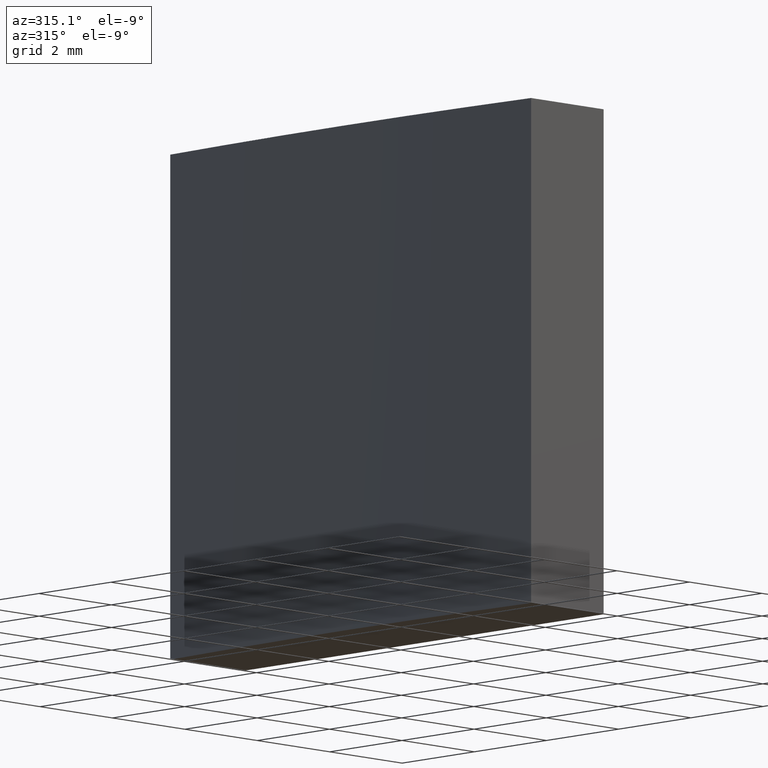
[diagram: clean part render]
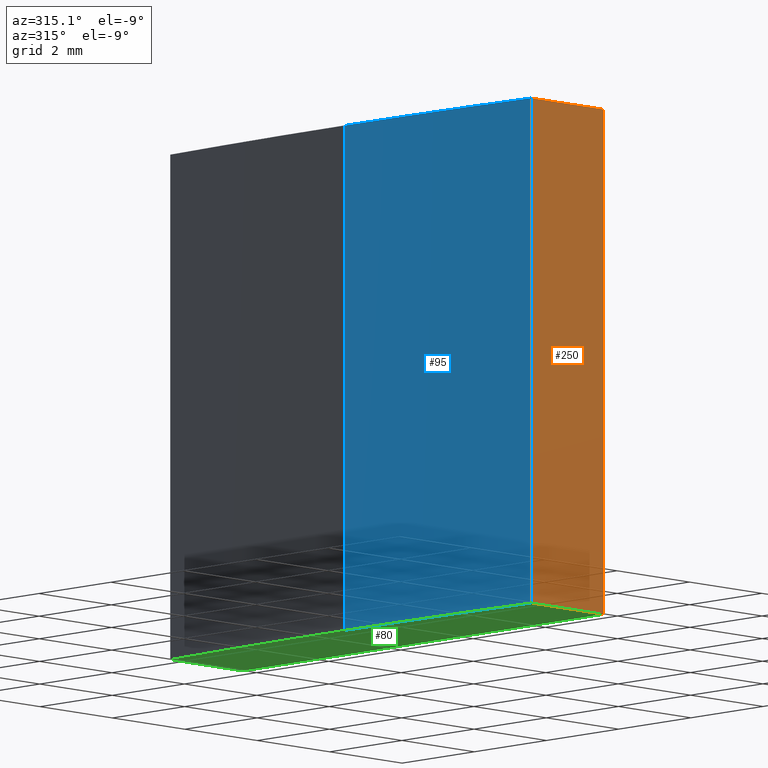
[diagram: same view with three faces highlighted in distinct colors, each labeled with its STEP entity id]
A machine part, auxiliary view with three faces highlighted in distinct colors.
Their STEP definitions:

[orange] entity #250 — the highlighted planar face has unit normal (0, 1, -0).
#6 = DIRECTION ( 'NONE',  ( -0.000000000000000000, -0.000000000000000000, -1.000000000000000000 ) ) ;
#7 = CARTESIAN_POINT ( 'NONE',  ( -77.38864580802534476, -4.999999999999997335, 10.00000000000000000 ) ) ;
#20 = VERTEX_POINT ( 'NONE', #47 ) ;
#30 = DIRECTION ( 'NONE',  ( 1.000000000000000000, -1.734723475976805517E-15, 0.000000000000000000 ) ) ;
#46 = DIRECTION ( 'NONE',  ( -0.000000000000000000, -0.000000000000000000, -1.000000000000000000 ) ) ;
#47 = CARTESIAN_POINT ( 'NONE',  ( -75.38864580802534476, -5.000000000000000888, 10.00000000000000000 ) ) ;
#48 = VECTOR ( 'NONE', #30, 1000.000000000000000 ) ;
#68 = FACE_OUTER_BOUND ( 'NONE', #268, .T. ) ;
#77 = EDGE_CURVE ( 'NONE', #264, #20, #209, .T. ) ;
#83 = EDGE_CURVE ( 'NONE', #20, #144, #206, .T. ) ;
#84 = CARTESIAN_POINT ( 'NONE',  ( -75.38864580802534476, -5.000000000000000888, 0.000000000000000000 ) ) ;
#85 = CARTESIAN_POINT ( 'NONE',  ( -77.38864580802534476, -4.999999999999997335, 10.00000000000000000 ) ) ;
#87 = VECTOR ( 'NONE', #205, 1000.000000000000000 ) ;
#113 = EDGE_CURVE ( 'NONE', #264, #184, #230, .T. ) ;
#140 = LINE ( 'NONE', #153, #48 ) ;
#144 = VERTEX_POINT ( 'NONE', #84 ) ;
#153 = CARTESIAN_POINT ( 'NONE',  ( -77.38864580802534476, -4.999999999999997335, 0.000000000000000000 ) ) ;
#156 = DIRECTION ( 'NONE',  ( -1.000000000000000000, 1.734723475976805517E-15, 0.000000000000000000 ) ) ;
#158 = CARTESIAN_POINT ( 'NONE',  ( -77.38864580802534476, -4.999999999999997335, 10.00000000000000000 ) ) ;
#165 = ORIENTED_EDGE ( 'NONE', *, *, #77, .F. ) ;
#176 = VECTOR ( 'NONE', #46, 1000.000000000000000 ) ;
#184 = VERTEX_POINT ( 'NONE', #253 ) ;
#192 = CARTESIAN_POINT ( 'NONE',  ( -75.38864580802534476, -5.000000000000000888, 10.00000000000000000 ) ) ;
#194 = CARTESIAN_POINT ( 'NONE',  ( -77.38864580802534476, -4.999999999999997335, 10.00000000000000000 ) ) ;
#200 = ORIENTED_EDGE ( 'NONE', *, *, #113, .T. ) ;
#205 = DIRECTION ( 'NONE',  ( 1.000000000000000000, -1.734723475976805517E-15, 0.000000000000000000 ) ) ;
#206 = LINE ( 'NONE', #192, #228 ) ;
#209 = LINE ( 'NONE', #194, #87 ) ;
#220 = PLANE ( 'NONE',  #274 ) ;
#227 = EDGE_CURVE ( 'NONE', #184, #144, #140, .T. ) ;
#228 = VECTOR ( 'NONE', #6, 1000.000000000000000 ) ;
#230 = LINE ( 'NONE', #85, #176 ) ;
#237 = DIRECTION ( 'NONE',  ( 1.734723475976805517E-15, 1.000000000000000000, -0.000000000000000000 ) ) ;
#246 = ORIENTED_EDGE ( 'NONE', *, *, #83, .F. ) ;
#250 = ADVANCED_FACE ( 'NONE', ( #68 ), #220, .F. ) ;
#253 = CARTESIAN_POINT ( 'NONE',  ( -77.38864580802534476, -4.999999999999997335, 0.000000000000000000 ) ) ;
#264 = VERTEX_POINT ( 'NONE', #158 ) ;
#268 = EDGE_LOOP ( 'NONE', ( #271, #246, #165, #200 ) ) ;
#271 = ORIENTED_EDGE ( 'NONE', *, *, #227, .T. ) ;
#274 = AXIS2_PLACEMENT_3D ( 'NONE', #7, #237, #156 ) ;

[blue] entity #95 — the highlighted cylindrical surface (partial cylindrical patch) has radius 77.55 mm, axis along (-0, -0, -1).
#1 = CYLINDRICAL_SURFACE ( 'NONE', #233, 77.54999999999999716 ) ;
#27 = CARTESIAN_POINT ( 'NONE',  ( 0.000000000000000000, 0.000000000000000000, 10.00000000000000000 ) ) ;
#43 = CARTESIAN_POINT ( 'NONE',  ( -77.54999999999999716, 0.000000000000000000, 10.00000000000000000 ) ) ;
#46 = DIRECTION ( 'NONE',  ( -0.000000000000000000, -0.000000000000000000, -1.000000000000000000 ) ) ;
#52 = EDGE_CURVE ( 'NONE', #189, #100, #211, .T. ) ;
#65 = CIRCLE ( 'NONE', #123, 77.54999999999999716 ) ;
#66 = CARTESIAN_POINT ( 'NONE',  ( -77.54999999999999716, 0.000000000000000000, 10.00000000000000000 ) ) ;
#85 = CARTESIAN_POINT ( 'NONE',  ( -77.38864580802534476, -4.999999999999997335, 10.00000000000000000 ) ) ;
#91 = DIRECTION ( 'NONE',  ( 1.000000000000000000, 0.000000000000000000, 0.000000000000000000 ) ) ;
#95 = ADVANCED_FACE ( 'NONE', ( #172 ), #1, .T. ) ;
#100 = VERTEX_POINT ( 'NONE', #251 ) ;
#101 = ORIENTED_EDGE ( 'NONE', *, *, #52, .T. ) ;
#113 = EDGE_CURVE ( 'NONE', #264, #184, #230, .T. ) ;
#118 = VECTOR ( 'NONE', #174, 1000.000000000000000 ) ;
#123 = AXIS2_PLACEMENT_3D ( 'NONE', #236, #139, #91 ) ;
#127 = CIRCLE ( 'NONE', #166, 77.54999999999999716 ) ;
#131 = CARTESIAN_POINT ( 'NONE',  ( 0.000000000000000000, 0.000000000000000000, 10.00000000000000000 ) ) ;
#134 = EDGE_CURVE ( 'NONE', #189, #264, #127, .T. ) ;
#139 = DIRECTION ( 'NONE',  ( 0.000000000000000000, 0.000000000000000000, 1.000000000000000000 ) ) ;
#158 = CARTESIAN_POINT ( 'NONE',  ( -77.38864580802534476, -4.999999999999997335, 10.00000000000000000 ) ) ;
#163 = ORIENTED_EDGE ( 'NONE', *, *, #113, .F. ) ;
#166 = AXIS2_PLACEMENT_3D ( 'NONE', #131, #177, #195 ) ;
#170 = DIRECTION ( 'NONE',  ( -1.000000000000000000, 0.000000000000000000, 0.000000000000000000 ) ) ;
#172 = FACE_OUTER_BOUND ( 'NONE', #259, .T. ) ;
#174 = DIRECTION ( 'NONE',  ( -0.000000000000000000, -0.000000000000000000, -1.000000000000000000 ) ) ;
#176 = VECTOR ( 'NONE', #46, 1000.000000000000000 ) ;
#177 = DIRECTION ( 'NONE',  ( 0.000000000000000000, 0.000000000000000000, 1.000000000000000000 ) ) ;
#184 = VERTEX_POINT ( 'NONE', #253 ) ;
#189 = VERTEX_POINT ( 'NONE', #66 ) ;
#193 = DIRECTION ( 'NONE',  ( -0.000000000000000000, -0.000000000000000000, -1.000000000000000000 ) ) ;
#195 = DIRECTION ( 'NONE',  ( 1.000000000000000000, 0.000000000000000000, 0.000000000000000000 ) ) ;
#211 = LINE ( 'NONE', #43, #118 ) ;
#226 = ORIENTED_EDGE ( 'NONE', *, *, #134, .F. ) ;
#230 = LINE ( 'NONE', #85, #176 ) ;
#233 = AXIS2_PLACEMENT_3D ( 'NONE', #27, #193, #170 ) ;
#236 = CARTESIAN_POINT ( 'NONE',  ( 0.000000000000000000, 0.000000000000000000, 0.000000000000000000 ) ) ;
#239 = EDGE_CURVE ( 'NONE', #100, #184, #65, .T. ) ;
#248 = ORIENTED_EDGE ( 'NONE', *, *, #239, .T. ) ;
#251 = CARTESIAN_POINT ( 'NONE',  ( -77.54999999999999716, 0.000000000000000000, 0.000000000000000000 ) ) ;
#253 = CARTESIAN_POINT ( 'NONE',  ( -77.38864580802534476, -4.999999999999997335, 0.000000000000000000 ) ) ;
#259 = EDGE_LOOP ( 'NONE', ( #226, #101, #248, #163 ) ) ;
#264 = VERTEX_POINT ( 'NONE', #158 ) ;

[green] entity #80 — the highlighted planar face has unit normal (0, 0, 1).
#22 = DIRECTION ( 'NONE',  ( 0.000000000000000000, 0.000000000000000000, 1.000000000000000000 ) ) ;
#23 = DIRECTION ( 'NONE',  ( -1.000000000000000000, -1.734723475976805517E-15, -0.000000000000000000 ) ) ;
#30 = DIRECTION ( 'NONE',  ( 1.000000000000000000, -1.734723475976805517E-15, 0.000000000000000000 ) ) ;
#42 = DIRECTION ( 'NONE',  ( 1.000000000000000000, 0.000000000000000000, 0.000000000000000000 ) ) ;
#48 = VECTOR ( 'NONE', #30, 1000.000000000000000 ) ;
#55 = EDGE_CURVE ( 'NONE', #69, #100, #75, .T. ) ;
#56 = ORIENTED_EDGE ( 'NONE', *, *, #239, .F. ) ;
#57 = AXIS2_PLACEMENT_3D ( 'NONE', #229, #252, #42 ) ;
#60 = CARTESIAN_POINT ( 'NONE',  ( -75.38864580802534476, 5.000000000000000888, 0.000000000000000000 ) ) ;
#61 = PLANE ( 'NONE',  #208 ) ;
#65 = CIRCLE ( 'NONE', #123, 77.54999999999999716 ) ;
#69 = VERTEX_POINT ( 'NONE', #234 ) ;
#75 = CIRCLE ( 'NONE', #57, 77.54999999999999716 ) ;
#80 = ADVANCED_FACE ( 'NONE', ( #210 ), #61, .F. ) ;
#82 = CARTESIAN_POINT ( 'NONE',  ( 0.000000000000000000, 0.000000000000000000, 0.000000000000000000 ) ) ;
#84 = CARTESIAN_POINT ( 'NONE',  ( -75.38864580802534476, -5.000000000000000888, 0.000000000000000000 ) ) ;
#86 = LINE ( 'NONE', #249, #171 ) ;
#91 = DIRECTION ( 'NONE',  ( 1.000000000000000000, 0.000000000000000000, 0.000000000000000000 ) ) ;
#92 = EDGE_LOOP ( 'NONE', ( #270, #104, #180, #188, #56 ) ) ;
#100 = VERTEX_POINT ( 'NONE', #251 ) ;
#104 = ORIENTED_EDGE ( 'NONE', *, *, #107, .F. ) ;
#107 = EDGE_CURVE ( 'NONE', #120, #69, #86, .T. ) ;
#109 = DIRECTION ( 'NONE',  ( -0.000000000000000000, 1.000000000000000000, -0.000000000000000000 ) ) ;
#120 = VERTEX_POINT ( 'NONE', #60 ) ;
#123 = AXIS2_PLACEMENT_3D ( 'NONE', #236, #139, #91 ) ;
#132 = LINE ( 'NONE', #147, #240 ) ;
#139 = DIRECTION ( 'NONE',  ( 0.000000000000000000, 0.000000000000000000, 1.000000000000000000 ) ) ;
#140 = LINE ( 'NONE', #153, #48 ) ;
#144 = VERTEX_POINT ( 'NONE', #84 ) ;
#147 = CARTESIAN_POINT ( 'NONE',  ( -75.38864580802534476, 5.000000000000000888, 0.000000000000000000 ) ) ;
#153 = CARTESIAN_POINT ( 'NONE',  ( -77.38864580802534476, -4.999999999999997335, 0.000000000000000000 ) ) ;
#171 = VECTOR ( 'NONE', #23, 1000.000000000000000 ) ;
#175 = EDGE_CURVE ( 'NONE', #144, #120, #132, .T. ) ;
#180 = ORIENTED_EDGE ( 'NONE', *, *, #175, .F. ) ;
#184 = VERTEX_POINT ( 'NONE', #253 ) ;
#188 = ORIENTED_EDGE ( 'NONE', *, *, #227, .F. ) ;
#196 = DIRECTION ( 'NONE',  ( 1.000000000000000000, 0.000000000000000000, -0.000000000000000000 ) ) ;
#208 = AXIS2_PLACEMENT_3D ( 'NONE', #82, #22, #196 ) ;
#210 = FACE_OUTER_BOUND ( 'NONE', #92, .T. ) ;
#227 = EDGE_CURVE ( 'NONE', #184, #144, #140, .T. ) ;
#229 = CARTESIAN_POINT ( 'NONE',  ( 0.000000000000000000, 0.000000000000000000, 0.000000000000000000 ) ) ;
#234 = CARTESIAN_POINT ( 'NONE',  ( -77.38864580802534476, 4.999999999999997335, 0.000000000000000000 ) ) ;
#236 = CARTESIAN_POINT ( 'NONE',  ( 0.000000000000000000, 0.000000000000000000, 0.000000000000000000 ) ) ;
#239 = EDGE_CURVE ( 'NONE', #100, #184, #65, .T. ) ;
#240 = VECTOR ( 'NONE', #109, 1000.000000000000000 ) ;
#249 = CARTESIAN_POINT ( 'NONE',  ( -77.38864580802534476, 4.999999999999997335, 0.000000000000000000 ) ) ;
#251 = CARTESIAN_POINT ( 'NONE',  ( -77.54999999999999716, 0.000000000000000000, 0.000000000000000000 ) ) ;
#252 = DIRECTION ( 'NONE',  ( 0.000000000000000000, 0.000000000000000000, 1.000000000000000000 ) ) ;
#253 = CARTESIAN_POINT ( 'NONE',  ( -77.38864580802534476, -4.999999999999997335, 0.000000000000000000 ) ) ;
#270 = ORIENTED_EDGE ( 'NONE', *, *, #55, .F. ) ;